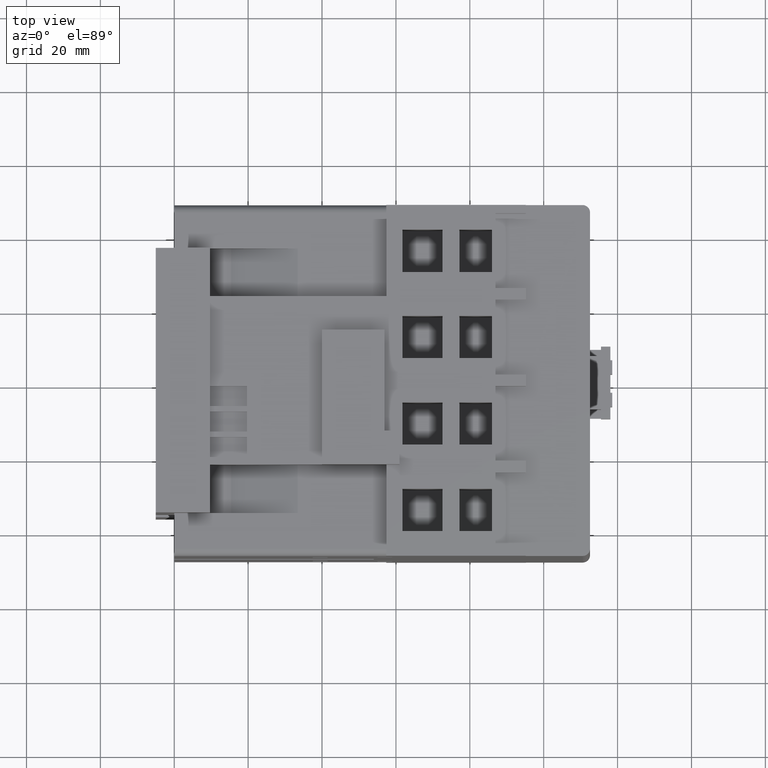
[diagram: clean part render]
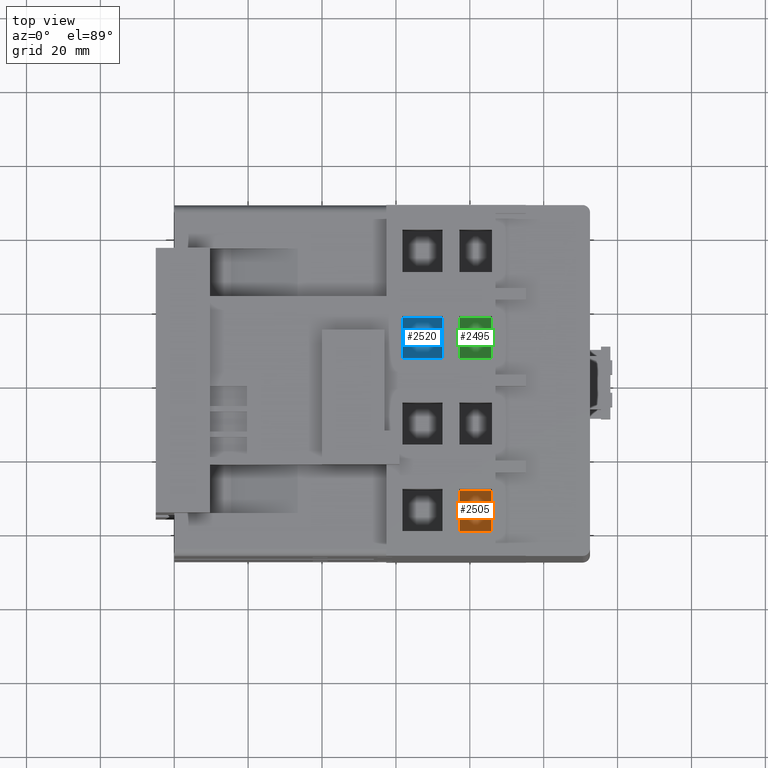
[diagram: same view with three faces highlighted in distinct colors, each labeled with its STEP entity id]
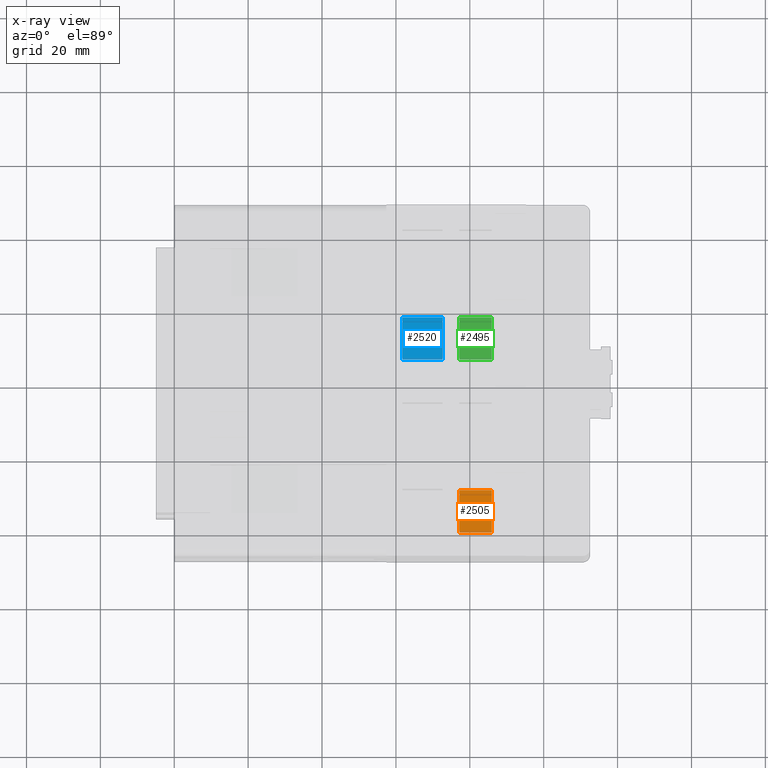
[diagram: x-ray of the same camera — body ghosted, the three highlighted faces saturated]
A machine part, top view with three faces highlighted in distinct colors.
The next image is the same camera in x-ray (body ghosted, the three faces saturated) — at least one of them is partly hidden behind the body in this view.
Their STEP definitions:

[orange] entity #2505 — the highlighted planar face has unit normal (-0, 0, -1).
#2505=ADVANCED_FACE('',(#3313),#2931,.F.);
#2931=PLANE('',#10860);
#3313=FACE_OUTER_BOUND('',#3774,.T.);
#3774=EDGE_LOOP('',(#4827,#4828,#4829,#4830));
#4827=ORIENTED_EDGE('',*,*,#7677,.F.);
#4828=ORIENTED_EDGE('',*,*,#7678,.F.);
#4829=ORIENTED_EDGE('',*,*,#7679,.F.);
#4830=ORIENTED_EDGE('',*,*,#7675,.F.);
#6852=VERTEX_POINT('',#14359);
#6853=VERTEX_POINT('',#14361);
#6854=VERTEX_POINT('',#14365);
#6855=VERTEX_POINT('',#14367);
#7675=EDGE_CURVE('',#6852,#6853,#8745,.T.);
#7677=EDGE_CURVE('',#6854,#6852,#8747,.T.);
#7678=EDGE_CURVE('',#6855,#6854,#8748,.T.);
#7679=EDGE_CURVE('',#6853,#6855,#8749,.T.);
#8745=LINE('',#14360,#9791);
#8747=LINE('',#14364,#9793);
#8748=LINE('',#14366,#9794);
#8749=LINE('',#14368,#9795);
#9791=VECTOR('',#11966,1.);
#9793=VECTOR('',#11970,1.);
#9794=VECTOR('',#11971,1.);
#9795=VECTOR('',#11972,1.);
#10860=AXIS2_PLACEMENT_3D('',#14369,#11973,#11974);
#11966=DIRECTION('',(1.,0.,-1.20676415720126E-015));
#11970=DIRECTION('',(0.,0.,1.));
#11971=DIRECTION('',(-1.,0.,0.));
#11972=DIRECTION('',(0.,0.,-1.));
#11973=DIRECTION('',(0.,1.,0.));
#11974=DIRECTION('',(0.,0.,1.));
#14359=CARTESIAN_POINT('',(29.35,-30.7,85.95));
#14360=CARTESIAN_POINT('',(29.35,-30.7,85.95));
#14361=CARTESIAN_POINT('',(40.85,-30.7,85.95));
#14364=CARTESIAN_POINT('',(29.35,-30.7,77.15));
#14365=CARTESIAN_POINT('',(29.35,-30.7,77.15));
#14366=CARTESIAN_POINT('',(40.85,-30.7,77.15));
#14367=CARTESIAN_POINT('',(40.85,-30.7,77.15));
#14368=CARTESIAN_POINT('',(40.85,-30.7,85.95));
#14369=CARTESIAN_POINT('',(29.35,-30.7,85.95));

[blue] entity #2520 — the highlighted planar face has unit normal (-0, 0, -1).
#2520=ADVANCED_FACE('',(#3328),#2946,.F.);
#2946=PLANE('',#10875);
#3328=FACE_OUTER_BOUND('',#3789,.T.);
#3789=EDGE_LOOP('',(#4887,#4888,#4889,#4890));
#4887=ORIENTED_EDGE('',*,*,#7701,.F.);
#4888=ORIENTED_EDGE('',*,*,#7702,.F.);
#4889=ORIENTED_EDGE('',*,*,#7703,.F.);
#4890=ORIENTED_EDGE('',*,*,#7699,.F.);
#6864=VERTEX_POINT('',#14410);
#6865=VERTEX_POINT('',#14412);
#6866=VERTEX_POINT('',#14416);
#6867=VERTEX_POINT('',#14418);
#7699=EDGE_CURVE('',#6864,#6865,#8769,.T.);
#7701=EDGE_CURVE('',#6866,#6864,#8771,.T.);
#7702=EDGE_CURVE('',#6867,#6866,#8772,.T.);
#7703=EDGE_CURVE('',#6865,#6867,#8773,.T.);
#8769=LINE('',#14411,#9815);
#8771=LINE('',#14415,#9817);
#8772=LINE('',#14417,#9818);
#8773=LINE('',#14419,#9819);
#9815=VECTOR('',#12020,1.);
#9817=VECTOR('',#12024,1.);
#9818=VECTOR('',#12025,1.);
#9819=VECTOR('',#12026,1.);
#10875=AXIS2_PLACEMENT_3D('',#14420,#12027,#12028);
#12020=DIRECTION('',(-7.95744713750829E-017,0.,-1.));
#12024=DIRECTION('',(1.,0.,0.));
#12025=DIRECTION('',(0.,0.,1.));
#12026=DIRECTION('',(-1.,0.,0.));
#12027=DIRECTION('',(0.,1.,0.));
#12028=DIRECTION('',(0.,0.,1.));
#14410=CARTESIAN_POINT('',(-5.95000000000001,-30.7,72.65));
#14411=CARTESIAN_POINT('',(-5.95000000000001,-30.7,72.65));
#14412=CARTESIAN_POINT('',(-5.95000000000001,-30.7,61.75));
#14415=CARTESIAN_POINT('',(-17.45,-30.7,72.65));
#14416=CARTESIAN_POINT('',(-17.45,-30.7,72.65));
#14417=CARTESIAN_POINT('',(-17.45,-30.7,61.75));
#14418=CARTESIAN_POINT('',(-17.45,-30.7,61.75));
#14419=CARTESIAN_POINT('',(-5.95000000000001,-30.7,61.75));
#14420=CARTESIAN_POINT('',(-5.95000000000001,-30.7,72.65));

[green] entity #2495 — the highlighted planar face has unit normal (-0, 0, -1).
#2495=ADVANCED_FACE('',(#3303),#2921,.F.);
#2921=PLANE('',#10850);
#3303=FACE_OUTER_BOUND('',#3764,.T.);
#3764=EDGE_LOOP('',(#4787,#4788,#4789,#4790));
#4787=ORIENTED_EDGE('',*,*,#7661,.F.);
#4788=ORIENTED_EDGE('',*,*,#7662,.F.);
#4789=ORIENTED_EDGE('',*,*,#7663,.F.);
#4790=ORIENTED_EDGE('',*,*,#7659,.F.);
#6844=VERTEX_POINT('',#14325);
#6845=VERTEX_POINT('',#14327);
#6846=VERTEX_POINT('',#14331);
#6847=VERTEX_POINT('',#14333);
#7659=EDGE_CURVE('',#6844,#6845,#8729,.T.);
#7661=EDGE_CURVE('',#6846,#6844,#8731,.T.);
#7662=EDGE_CURVE('',#6847,#6846,#8732,.T.);
#7663=EDGE_CURVE('',#6845,#6847,#8733,.T.);
#8729=LINE('',#14326,#9775);
#8731=LINE('',#14330,#9777);
#8732=LINE('',#14332,#9778);
#8733=LINE('',#14334,#9779);
#9775=VECTOR('',#11930,1.);
#9777=VECTOR('',#11934,1.);
#9778=VECTOR('',#11935,1.);
#9779=VECTOR('',#11936,1.);
#10850=AXIS2_PLACEMENT_3D('',#14335,#11937,#11938);
#11930=DIRECTION('',(0.,0.,1.));
#11934=DIRECTION('',(-1.,0.,0.));
#11935=DIRECTION('',(-9.85638338623186E-017,0.,-1.));
#11936=DIRECTION('',(1.,0.,0.));
#11937=DIRECTION('',(0.,1.,0.));
#11938=DIRECTION('',(0.,0.,1.));
#14325=CARTESIAN_POINT('',(-17.45,-30.7,77.15));
#14326=CARTESIAN_POINT('',(-17.45,-30.7,77.15));
#14327=CARTESIAN_POINT('',(-17.45,-30.7,85.95));
#14330=CARTESIAN_POINT('',(-5.95000000000001,-30.7,77.15));
#14331=CARTESIAN_POINT('',(-5.95000000000001,-30.7,77.15));
#14332=CARTESIAN_POINT('',(-5.95000000000001,-30.7,85.95));
#14333=CARTESIAN_POINT('',(-5.95000000000001,-30.7,85.95));
#14334=CARTESIAN_POINT('',(-17.45,-30.7,85.95));
#14335=CARTESIAN_POINT('',(-17.45,-30.7,77.15));